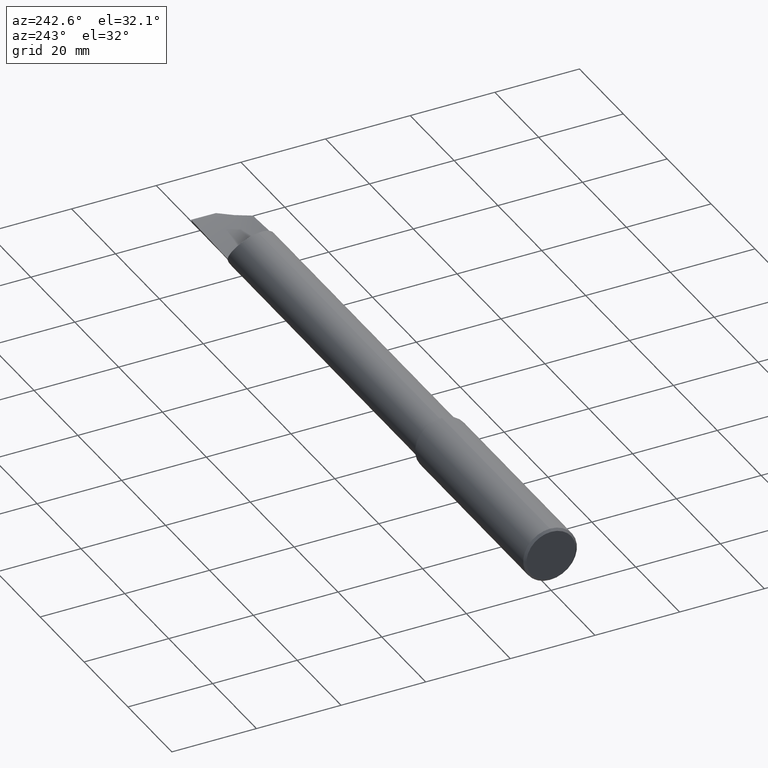
[diagram: clean part render]
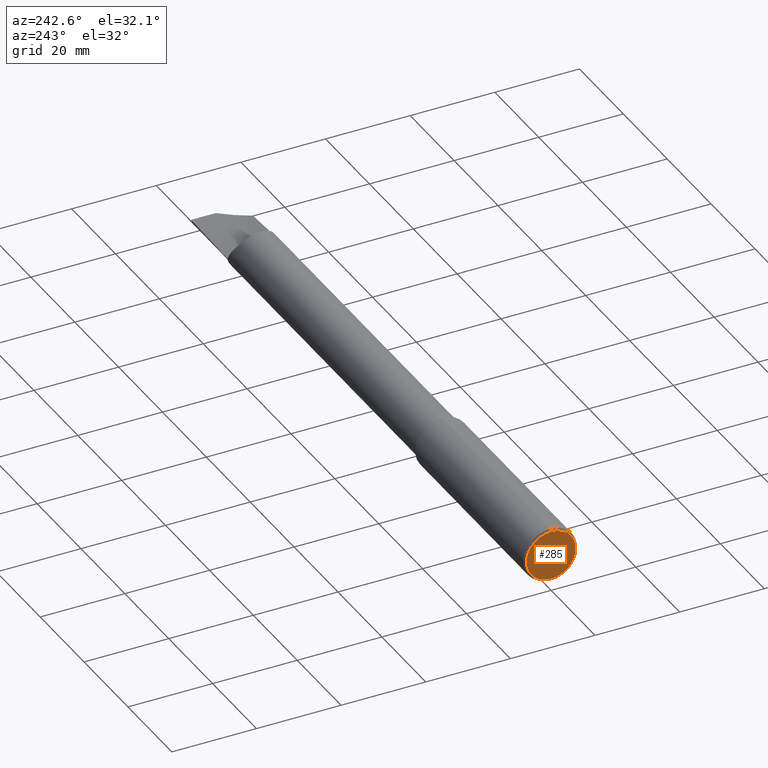
[diagram: same view with one face highlighted and labeled with its STEP entity id]
A machine part, auxiliary view. The second image highlights one B-rep face of the part: STEP entity #285.
In plain terms, the highlighted planar face has unit normal (1, 0, 0).
Its self-contained STEP definition (entity closure, byte-faithful):
#34 = ORIENTED_EDGE ( 'NONE', *, *, #274, .T. ) ;
#105 = DIRECTION ( 'NONE',  ( 0.000000000000000000, 0.000000000000000000, 1.000000000000000000 ) ) ;
#164 = DIRECTION ( 'NONE',  ( -1.000000000000000000, -0.000000000000000000, -0.000000000000000000 ) ) ;
#240 = VERTEX_POINT ( 'NONE', #591 ) ;
#259 = CIRCLE ( 'NONE', #556, 0.2298499999999999155 ) ;
#274 = EDGE_CURVE ( 'NONE', #287, #240, #419, .T. ) ;
#285 = ADVANCED_FACE ( 'NONE', ( #585 ), #300, .F. ) ;
#287 = VERTEX_POINT ( 'NONE', #739 ) ;
#300 = PLANE ( 'NONE',  #466 ) ;
#365 = EDGE_CURVE ( 'NONE', #240, #287, #259, .T. ) ;
#395 = DIRECTION ( 'NONE',  ( 0.000000000000000000, 0.000000000000000000, -1.000000000000000000 ) ) ;
#419 = CIRCLE ( 'NONE', #702, 0.2298499999999999155 ) ;
#466 = AXIS2_PLACEMENT_3D ( 'NONE', #756, #688, #395 ) ;
#514 = CARTESIAN_POINT ( 'NONE',  ( 0.000000000000000000, 0.000000000000000000, 0.000000000000000000 ) ) ;
#543 = CARTESIAN_POINT ( 'NONE',  ( 0.000000000000000000, 0.000000000000000000, 0.000000000000000000 ) ) ;
#556 = AXIS2_PLACEMENT_3D ( 'NONE', #543, #599, #648 ) ;
#585 = FACE_OUTER_BOUND ( 'NONE', #593, .T. ) ;
#591 = CARTESIAN_POINT ( 'NONE',  ( 0.000000000000000000, 2.937315347754926265E-17, 0.2298499999999999155 ) ) ;
#593 = EDGE_LOOP ( 'NONE', ( #34, #696 ) ) ;
#599 = DIRECTION ( 'NONE',  ( -1.000000000000000000, -0.000000000000000000, -0.000000000000000000 ) ) ;
#648 = DIRECTION ( 'NONE',  ( 0.000000000000000000, 0.000000000000000000, 1.000000000000000000 ) ) ;
#688 = DIRECTION ( 'NONE',  ( 1.000000000000000000, 0.000000000000000000, 0.000000000000000000 ) ) ;
#696 = ORIENTED_EDGE ( 'NONE', *, *, #365, .T. ) ;
#702 = AXIS2_PLACEMENT_3D ( 'NONE', #514, #164, #105 ) ;
#739 = CARTESIAN_POINT ( 'NONE',  ( 0.000000000000000000, 0.000000000000000000, -0.2298499999999999155 ) ) ;
#756 = CARTESIAN_POINT ( 'NONE',  ( 0.000000000000000000, 0.000000000000000000, 0.000000000000000000 ) ) ;